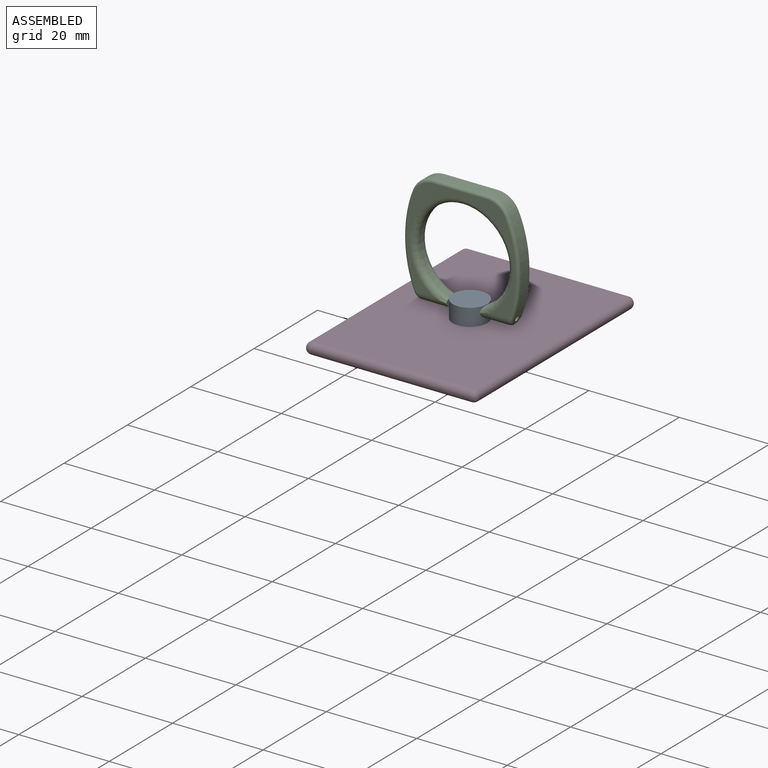
[diagram: assembled view]
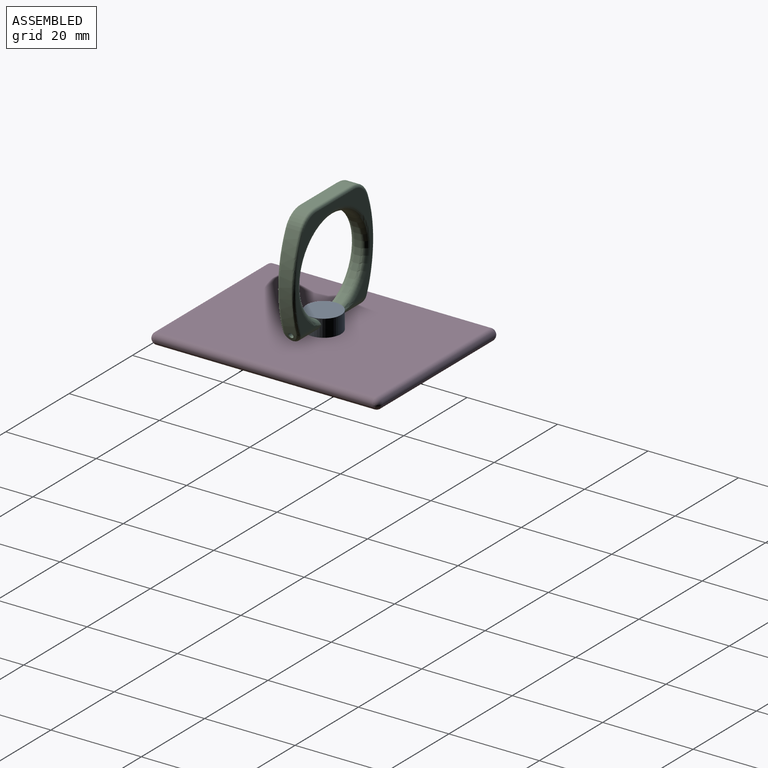
[diagram: assembled view, second angle]
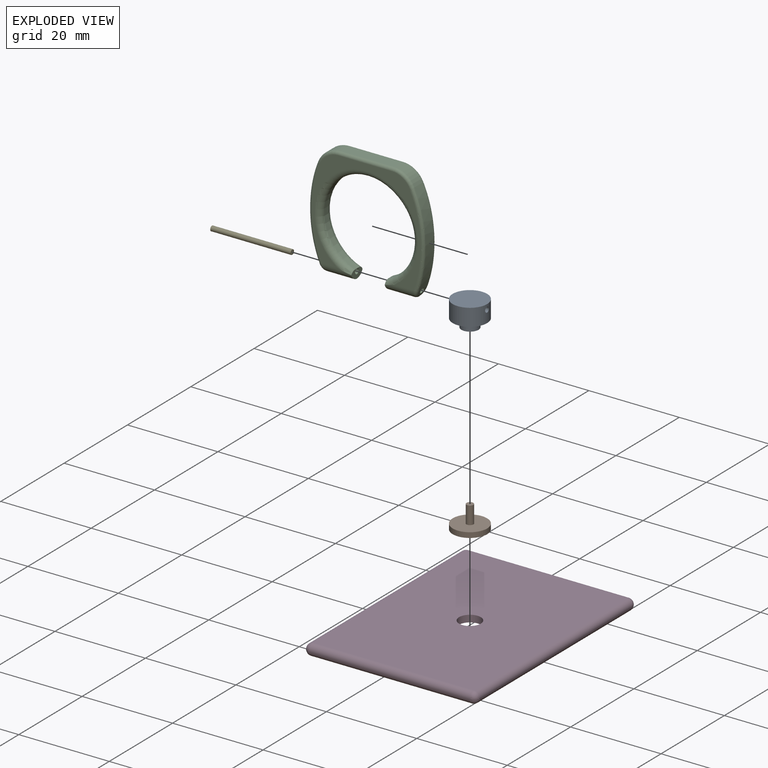
[diagram: exploded view]
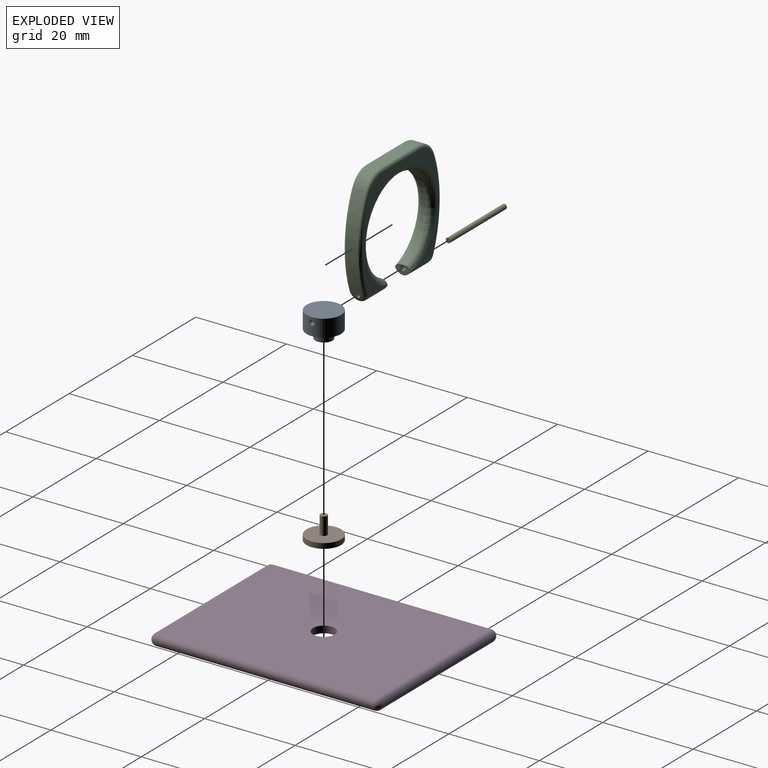
[diagram: exploded view, second angle]
ASSEMBLY  parts=5 mates=4
PART A: 8 faces, bbox 7.6x7.6x5.7 mm
  f0: cylinder r=1.91mm len=3.81mm, axis (0,0,-1), area 22mm2, adj f2,f5
  f1: cylinder r=3.81mm len=7.62mm, axis (0,0,-1), area 89.1mm2, adj f2,f3,f4
  f2: plane 7.62x7.62mm, normal (0,0,1), area 34.2mm2, adj f0,f1
  f3: plane 7.62x7.62mm, normal (0,0,-1), area 45.6mm2, adj f1
  f4: cylinder r=0.57mm len=7.62mm, axis (-1,0,0), area 27.2mm2, adj f1
  f5: plane 3.81x3.81mm, normal (0,0,1), area 8.6mm2, adj f0,f7
  f6: plane 1.91x1.91mm, normal (0,0,1), area 2.9mm2, adj f7
  f7: cylinder r=0.95mm len=2.79mm, axis (0,0,1), area 16.7mm2, adj f5,f6
PART B: 5 faces, bbox 7.6x7.6x5.1 mm
  f0: plane 7.62x7.62mm, normal (0,0,-1), area 45.6mm2, adj f1
  f1: cylinder r=3.81mm len=7.62mm, axis (0,0,1), area 27.4mm2, adj f0,f2
  f2: plane 7.62x7.62mm, normal (0,0,1), area 43.8mm2, adj f1,f3
  f3: cylinder r=0.76mm len=3.91mm, axis (0,0,-1), area 18.7mm2, adj f2,f4
  f4: plane 1.52x1.52mm, normal (0,0,1), area 1.8mm2, adj f3
PART C: 32 faces, bbox 4x26.8x26.8 mm
  f0: plane 24.17x22.58mm, normal (1,0,0), area 108mm2, adj f9,f12,f14,f19,f21,f23,f26,f29
  f1: plane 24.17x22.58mm, normal (-1,0,0), area 108mm2, adj f8,f13,f15,f18,f20,f22,f28,f31
  f2: extruded ~22x2.54mm, area 54.5mm2, adj f10,f22,f23,f24,f25,f27
  f3: extruded ~21.75x2.78mm, area 53.8mm2, adj f11,f16,f17,f18,f19,f30
  f4: plane 11.84x2.54mm, normal (0,0,1), area 30.1mm2, adj f20,f21,f27,f30
  f5: plane 3.65x2.16mm, normal (0,1,0), area 4.5mm2, adj f6,f8,f9,f11,f12,f13
  f6: cylinder r=10.16mm len=20.32mm, axis (-1,0,0), area 71.4mm2, adj f5,f7,f8,f9
  f7: plane 3.77x2.44mm, normal (0,-1,0), area 5.3mm2, adj f6,f8,f9,f10,f14,f15
  f8: torus R=11.43mm, axis (1,0,0), area 116.7mm2, adj f1,f5,f6,f7,f13,f15
  f9: torus R=11.43mm, axis (1,0,0), area 116.7mm2, adj f0,f5,f6,f7,f12,f14
  f10: cylinder r=0.57mm len=7.22mm, axis (0,1,0), area 25.9mm2, adj f2,f7
  f11: cylinder r=0.57mm len=7.33mm, axis (0,1,0), area 26.3mm2, adj f3,f5
  f12: cylinder r=2.03mm len=6.63mm, axis (0,-1,0), area 18.3mm2, adj f0,f5,f9,f13,f17
  f13: cylinder r=2.03mm len=6.63mm, axis (0,1,0), area 18.3mm2, adj f1,f5,f8,f12,f16
  f14: cylinder r=2.03mm len=6.53mm, axis (0,-1,0), area 18.5mm2, adj f0,f7,f9,f15,f25
  f15: cylinder r=2.03mm len=6.53mm, axis (0,1,0), area 18.5mm2, adj f1,f7,f8,f14,f24
  f16: bspline ~2.3x2.23mm, area 2.3mm2, adj f3,f13,f17,f18
  f17: bspline ~2.3x2.23mm, area 2.3mm2, adj f3,f12,f16,f19
  f18: bspline ~22.5x3.04mm, area 20.6mm2, adj f1,f3,f16,f31
  f19: bspline ~22.5x3.04mm, area 20.6mm2, adj f0,f3,f17,f29
  f20: cylinder r=0.64mm len=11.84mm, axis (0,-1,0), area 11.8mm2, adj f1,f4,f28,f31
  f21: cylinder r=0.64mm len=11.84mm, axis (0,1,0), area 11.8mm2, adj f0,f4,f26,f29
  f22: bspline ~22.4x3.66mm, area 20.9mm2, adj f1,f2,f24,f28
  f23: bspline ~22.4x3.66mm, area 20.9mm2, adj f0,f2,f25,f26
  f24: bspline ~2.31x2.19mm, area 2.3mm2, adj f2,f15,f22,f25
  f25: bspline ~2.31x2.19mm, area 2.3mm2, adj f2,f14,f23,f24
  f26: torus R=4.45mm, axis (1,0,0), area 5.4mm2, adj f0,f21,f23,f27
  f27: cylinder r=5.08mm len=4.58mm, axis (-1,0,0), area 14.5mm2, adj f2,f4,f26,f28
  f28: torus R=4.45mm, axis (1,0,0), area 5.4mm2, adj f1,f20,f22,f27
  f29: torus R=4.45mm, axis (1,0,0), area 5.7mm2, adj f0,f19,f21,f30
  f30: cylinder r=5.08mm len=4.7mm, axis (-1,0,0), area 15.2mm2, adj f3,f4,f29,f31
  f31: torus R=4.45mm, axis (1,0,0), area 5.7mm2, adj f1,f18,f20,f30
PART D: 25 faces, bbox 38.1x50.8x2.5 mm
  f0: cylinder r=2.41mm len=4.83mm, axis (0,0,-1), area 23.1mm2, adj f1,f24
  f1: plane 48.26x35.56mm, normal (0,0,1), area 1697.8mm2, adj f0,f2,f3,f4,f5
  f2: cylinder r=1.27mm len=35.56mm, axis (-1,0,0), area 141.9mm2, adj f1,f6,f7,f10
  f3: cylinder r=1.27mm len=48.26mm, axis (0,-1,0), area 192.5mm2, adj f1,f6,f8,f11
  f4: cylinder r=1.27mm len=48.26mm, axis (0,1,0), area 192.5mm2, adj f1,f7,f9,f13
  f5: cylinder r=1.27mm len=35.56mm, axis (1,0,0), area 141.9mm2, adj f1,f8,f9,f12
  f6: sphere r=1.27mm, area 5.1mm2, adj f2,f3
  f7: sphere r=1.27mm, area 5.1mm2, adj f2,f4
  f8: sphere r=1.27mm, area 5.1mm2, adj f3,f5
  f9: sphere r=1.27mm, area 5.1mm2, adj f4,f5
  f10: plane 35.56x0.51mm, normal (0,1,0), area 18.1mm2, adj f2,f11,f13,f16
  f11: plane 48.26x0.51mm, normal (-1,0,0), area 24.5mm2, adj f3,f10,f12,f17
  f12: plane 35.56x0.51mm, normal (0,-1,0), area 18.1mm2, adj f5,f11,f13,f19
  f13: plane 48.26x0.51mm, normal (1,0,0), area 24.5mm2, adj f4,f10,f12,f18
  f14: cylinder r=2.92mm len=5.84mm, axis (0,0,-1), area 18.6mm2, adj f15,f24
  f15: plane 48.26x35.56mm, normal (0,0,-1), area 1689.3mm2, adj f14,f16,f17,f18,f19
  f16: cylinder r=0.76mm len=35.56mm, axis (-1,0,0), area 85.1mm2, adj f10,f15,f20,f21
  f17: cylinder r=0.76mm len=48.26mm, axis (0,-1,0), area 115.5mm2, adj f11,f15,f20,f22
  f18: cylinder r=0.76mm len=48.26mm, axis (0,1,0), area 115.5mm2, adj f13,f15,f21,f23
  f19: cylinder r=0.76mm len=35.56mm, axis (1,0,0), area 85.1mm2, adj f12,f15,f22,f23
  f20: sphere r=0.76mm, area 1.8mm2, adj f16,f17
  f21: sphere r=0.76mm, area 1.8mm2, adj f16,f18
  f22: sphere r=0.76mm, area 1.8mm2, adj f17,f19
  f23: sphere r=0.76mm, area 1.8mm2, adj f18,f19
  f24: plane 5.84x5.84mm, normal (0,0,-1), area 8.5mm2, adj f0,f14
PART E: 3 faces, bbox 1.1x1.1x17.8 mm
  f0: cylinder r=0.55mm len=17.78mm, axis (0,0,-1), area 61mm2, adj f1,f2
  f1: plane 1.09x1.09mm, normal (0,0,1), area 0.9mm2, adj f0
  f2: plane 1.09x1.09mm, normal (0,0,-1), area 0.9mm2, adj f0
PLACE A rot(axis=(0,1,0),180deg) t=(23.26,0.65,10.97)mm
PLACE B t=(23.31,38.75,4.15)mm
PLACE C rot(axis=(0,0,-1),90deg) t=(22.7,2.56,9.82)mm
PLACE D t=(23.29,0.65,4.38)mm
PLACE E rot(axis=(0.71,0,-0.71),180deg) t=(31.62,26.05,9.82)mm
MATE revolute C.f10 <-> A.f4  axis (1,0,0) through (19.3,0.65,9.82)mm
MATE revolute E.f0 <-> C.f10  axis (1,0,0) through (13.84,0.65,9.82)mm
MATE fastened B.f1 <-> A.f0  axis (0,0,1) through (23.29,0.65,5.31)mm
MATE revolute A.f0 <-> D.f0  axis (0,0,-1) through (23.29,0.65,7.15)mm
